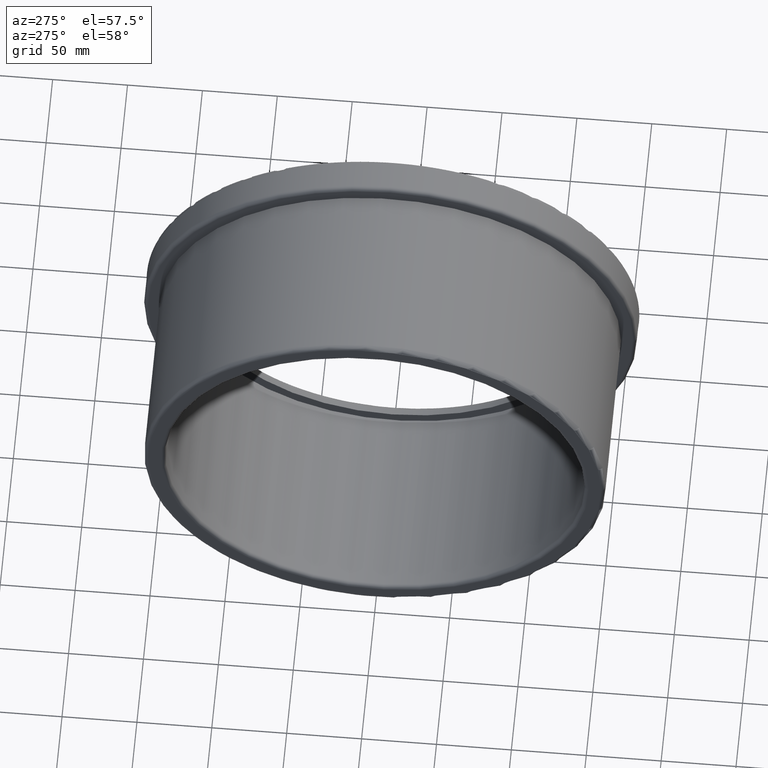
[diagram: clean part render]
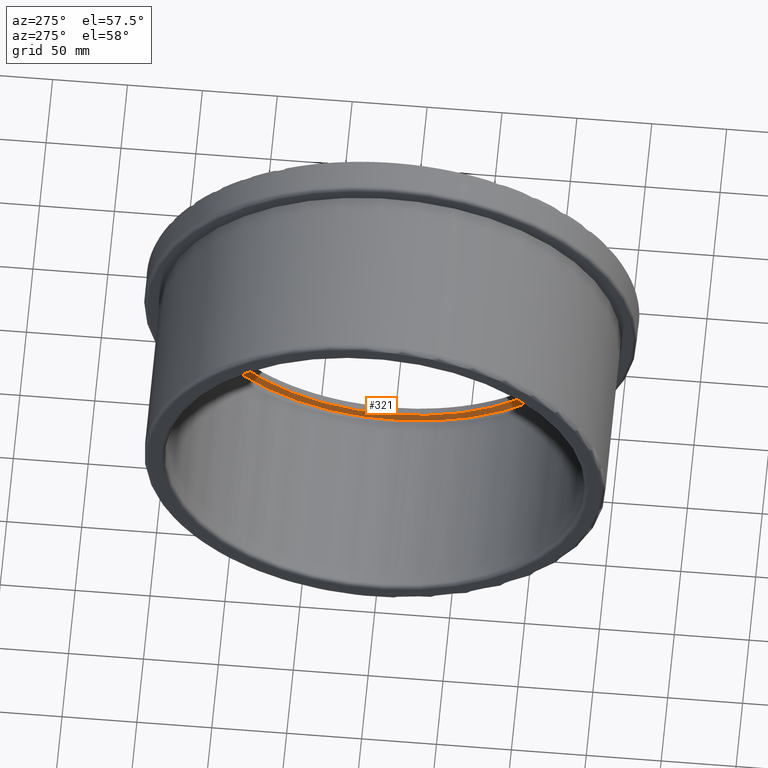
[diagram: same view with one face highlighted and labeled with its STEP entity id]
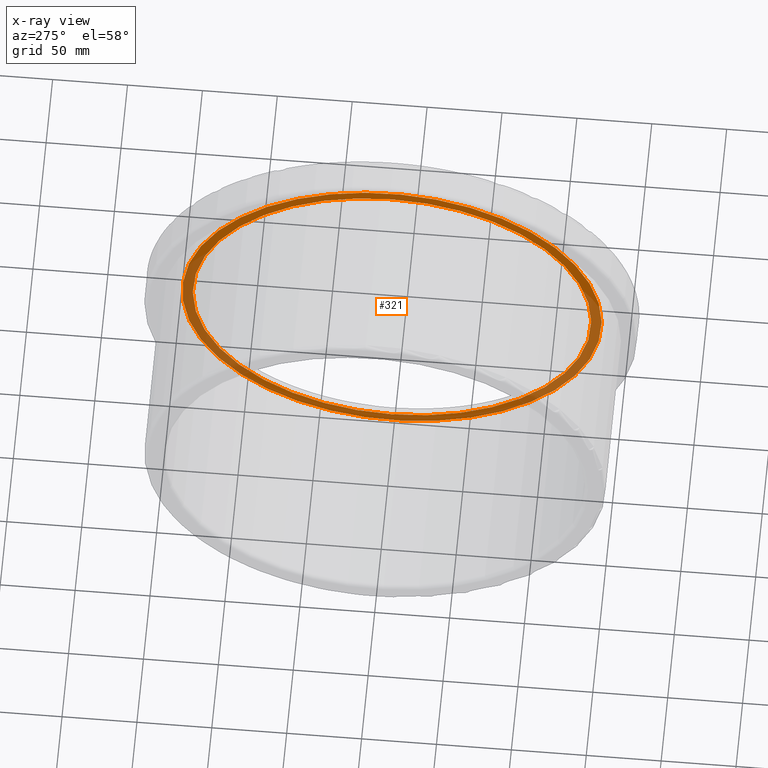
[diagram: x-ray of the same camera — body ghosted, the highlighted face saturated]
A machine part, auxiliary view. The second image highlights one B-rep face of the part: STEP entity #321.
The next image is the same camera in x-ray: the body ghosted, the highlighted face saturated — about 35% of this face is hidden behind the body in this view.
In plain terms, the highlighted planar face has unit normal (-1, 0, 0).
Its self-contained STEP definition (entity closure, byte-faithful):
#41=PLANE('',#367);
#63=FACE_BOUND('',#139,.T.);
#90=FACE_OUTER_BOUND('',#138,.T.);
#138=EDGE_LOOP('',(#283));
#139=EDGE_LOOP('',(#284));
#142=CIRCLE('',#329,133.);
#153=CIRCLE('',#349,140.);
#165=VERTEX_POINT('',#528);
#179=VERTEX_POINT('',#1911);
#192=EDGE_CURVE('',#165,#165,#142,.T.);
#209=EDGE_CURVE('',#179,#179,#153,.T.);
#283=ORIENTED_EDGE('',*,*,#209,.T.);
#284=ORIENTED_EDGE('',*,*,#192,.F.);
#321=ADVANCED_FACE('',(#90,#63),#41,.T.);
#329=AXIS2_PLACEMENT_3D('',#529,#380,#381);
#349=AXIS2_PLACEMENT_3D('',#1912,#420,#421);
#367=AXIS2_PLACEMENT_3D('',#2769,#456,#457);
#380=DIRECTION('center_axis',(-1.,0.,0.));
#381=DIRECTION('ref_axis',(0.,0.,1.));
#420=DIRECTION('center_axis',(-1.,0.,0.));
#421=DIRECTION('ref_axis',(0.,0.,1.));
#456=DIRECTION('center_axis',(-1.,0.,0.));
#457=DIRECTION('ref_axis',(0.,0.,1.));
#528=CARTESIAN_POINT('',(132.,-133.,0.));
#529=CARTESIAN_POINT('Origin',(132.,0.,0.));
#1911=CARTESIAN_POINT('',(132.,-140.,0.));
#1912=CARTESIAN_POINT('Origin',(132.,0.,0.));
#2769=CARTESIAN_POINT('Origin',(132.,-133.,0.));